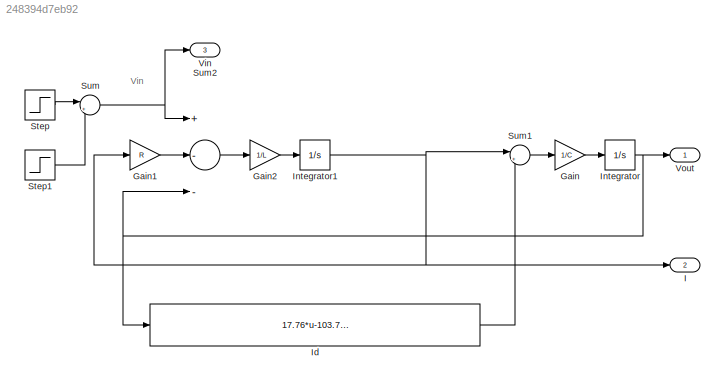
MODEL slx_248394d7eb92
KIND model
BLOCK [Gain] Gain
  Gain = 1/C
  OutDataTypeStr = Inherit: Inherit via internal rule
  ParamDataTypeStr = Inherit: Inherit via internal rule
  SaturateOnIntegerOverflow = off
BLOCK [Gain] Gain1
  Gain = R
  OutDataTypeStr = Inherit: Inherit via internal rule
  ParamDataTypeStr = Inherit: Inherit via internal rule
  SaturateOnIntegerOverflow = off
BLOCK [Gain] Gain2
  Gain = 1/L
  OutDataTypeStr = Inherit: Inherit via internal rule
  ParamDataTypeStr = Inherit: Inherit via internal rule
  SaturateOnIntegerOverflow = off
BLOCK [Outport] I
  IconDisplay = Port number
  Port = 2
BLOCK [Fcn] Id
  Expr = 17.76*u-103.79*u^2+229.62*u^3-226.31*u^4+83.72*u^5
BLOCK [Integrator] Integrator
  Ports = [1, 1]
BLOCK [Integrator] Integrator1
  Ports = [1, 1]
BLOCK [Step] Step
  After = Vmax
  SampleTime = 0
  Time = 0
BLOCK [Step] Step1
  After = Vmax
  SampleTime = 0
  Time = tpulse
BLOCK [Sum] Sum
  IconShape = round
  InputSameDT = off
  Inputs = |+-
  OutDataTypeStr = Inherit: Inherit via internal rule
  Ports = [2, 1]
  SaturateOnIntegerOverflow = off
BLOCK [Sum] Sum1
  IconShape = round
  InputSameDT = off
  Inputs = |+-
  OutDataTypeStr = Inherit: Inherit via internal rule
  Ports = [2, 1]
  SaturateOnIntegerOverflow = off
BLOCK [Sum] Sum2
  InputSameDT = off
  Inputs = +--
  OutDataTypeStr = Inherit: Inherit via internal rule
  Ports = [3, 1]
  SaturateOnIntegerOverflow = off
BLOCK [Outport] Vin
  IconDisplay = Port number
  Port = 3
BLOCK [Outport] Vout
  IconDisplay = Port number
ANNOTATION (root): Vin
LINE Gain1:1 -> Sum2:2
LINE Gain2:1 -> Integrator1:1
LINE Gain:1 -> Integrator:1
LINE Id:1 -> Sum1:2
NET Integrator1:1 -> Gain1:1, I:1, Sum1:1
NET Integrator:1 -> Id:1, Sum2:3, Vout:1
LINE Step1:1 -> Sum:2
LINE Step:1 -> Sum:1
LINE Sum1:1 -> Gain:1
LINE Sum2:1 -> Gain2:1
NET Sum:1 -> Sum2:1, Vin:1
note: NET lines group one-source signal fan-out (src -> all destinations, sorted); 1:1 wires keep LINE
